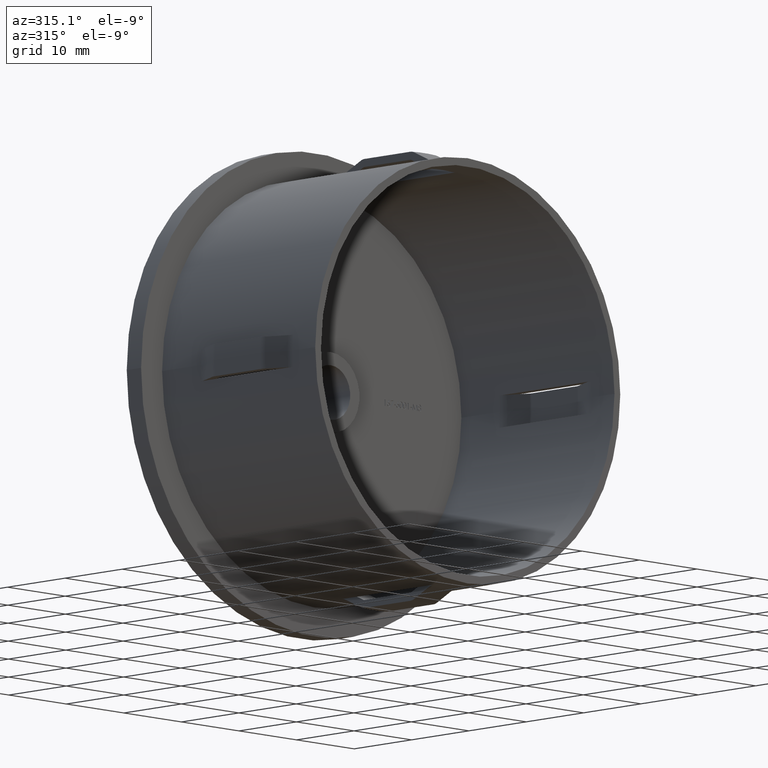
[diagram: clean part render]
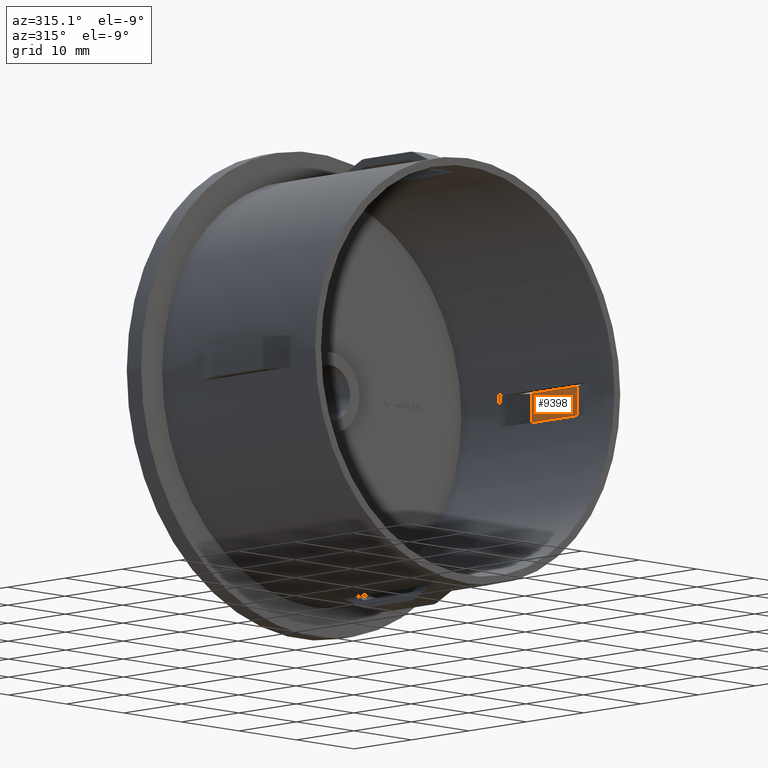
[diagram: same view with one face highlighted and labeled with its STEP entity id]
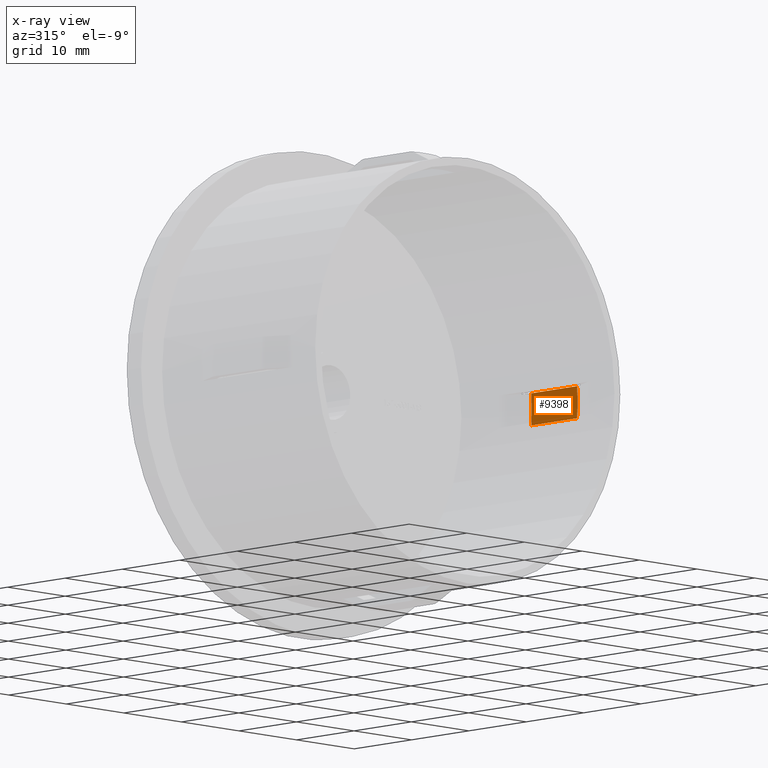
[diagram: x-ray of the same camera — body ghosted, the highlighted face saturated]
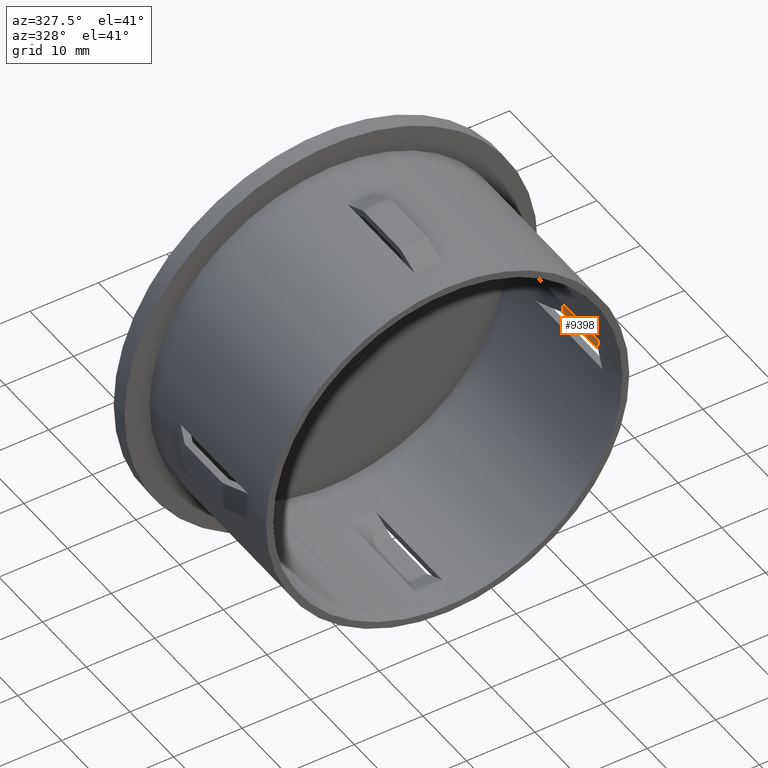
[diagram: same view with one face highlighted and labeled with its STEP entity id]
A machine part, auxiliary view. The second image highlights one B-rep face of the part: STEP entity #9398.
The next image is the same camera in x-ray: the body ghosted, the highlighted face saturated — about 0% of this face is hidden behind the body in this view.
A second angle (auxiliary view) of the same face is appended — the face is thin or edge-on in the first view.
In plain terms, the highlighted cylindrical surface (partial cylindrical patch) has radius 27.05 mm, axis along (-0, 1, -0).
Its self-contained STEP definition (entity closure, byte-faithful):
#309 = VERTEX_POINT ( 'NONE', #16264 ) ;
#1251 = VERTEX_POINT ( 'NONE', #3482 ) ;
#1332 = CIRCLE ( 'NONE', #14272, 27.05000000000000800 ) ;
#2228 = ORIENTED_EDGE ( 'NONE', *, *, #15185, .F. ) ;
#2448 = CARTESIAN_POINT ( 'NONE',  ( 1.494069094959771300E-015, 15.99999999999999600, 0.0000000000000000000 ) ) ;
#3482 = CARTESIAN_POINT ( 'NONE',  ( 26.97596152132488000, 7.999999999999992900, -2.000000000000000000 ) ) ;
#3612 = EDGE_CURVE ( 'NONE', #309, #16398, #5821, .T. ) ;
#3725 = LINE ( 'NONE', #5181, #16401 ) ;
#4189 = EDGE_CURVE ( 'NONE', #9384, #309, #16155, .T. ) ;
#4518 = CARTESIAN_POINT ( 'NONE',  ( 26.97596152132488000, 7.999999999999992900, 2.000000000000000000 ) ) ;
#5181 = CARTESIAN_POINT ( 'NONE',  ( 26.97596152132487600, 29.20000000000000300, -2.000000000000000000 ) ) ;
#5821 = CIRCLE ( 'NONE', #10619, 27.05000000000000100 ) ;
#6107 = ORIENTED_EDGE ( 'NONE', *, *, #3612, .T. ) ;
#6479 = DIRECTION ( 'NONE',  ( -1.224646799147353200E-016, 1.000000000000000000, -0.0000000000000000000 ) ) ;
#7179 = FACE_OUTER_BOUND ( 'NONE', #16176, .T. ) ;
#7673 = DIRECTION ( 'NONE',  ( -1.224646799147353200E-016, 1.000000000000000000, -0.0000000000000000000 ) ) ;
#8085 = DIRECTION ( 'NONE',  ( -1.224646799147353200E-016, 1.000000000000000000, -0.0000000000000000000 ) ) ;
#8474 = DIRECTION ( 'NONE',  ( -1.000000000000000000, -1.282605157838674100E-016, 0.0000000000000000000 ) ) ;
#8569 = CARTESIAN_POINT ( 'NONE',  ( 2.473786534277654000E-015, 7.999999999999992900, 0.0000000000000000000 ) ) ;
#9384 = VERTEX_POINT ( 'NONE', #4518 ) ;
#9398 = ADVANCED_FACE ( 'NONE', ( #7179 ), #10152, .F. ) ;
#10152 = CYLINDRICAL_SURFACE ( 'NONE', #12330, 27.05000000000000400 ) ;
#10197 = ORIENTED_EDGE ( 'NONE', *, *, #4189, .T. ) ;
#10619 = AXIS2_PLACEMENT_3D ( 'NONE', #2448, #7673, #12664 ) ;
#11905 = DIRECTION ( 'NONE',  ( -1.000000000000000000, -1.282605157838674100E-016, 0.0000000000000000000 ) ) ;
#12330 = AXIS2_PLACEMENT_3D ( 'NONE', #14487, #8085, #11905 ) ;
#12664 = DIRECTION ( 'NONE',  ( -1.000000000000000000, -1.282605157838674300E-016, 0.0000000000000000000 ) ) ;
#12994 = CARTESIAN_POINT ( 'NONE',  ( 26.97596152132487600, 16.00000000000000000, -2.000000000000000000 ) ) ;
#13022 = ORIENTED_EDGE ( 'NONE', *, *, #14357, .F. ) ;
#13134 = CARTESIAN_POINT ( 'NONE',  ( 26.97596152132487600, 29.20000000000000300, 2.000000000000000000 ) ) ;
#13410 = VECTOR ( 'NONE', #15673, 1000.000000000000000 ) ;
#13632 = DIRECTION ( 'NONE',  ( -1.224646799147353200E-016, 1.000000000000000000, -0.0000000000000000000 ) ) ;
#14272 = AXIS2_PLACEMENT_3D ( 'NONE', #8569, #13632, #8474 ) ;
#14357 = EDGE_CURVE ( 'NONE', #9384, #1251, #1332, .T. ) ;
#14487 = CARTESIAN_POINT ( 'NONE',  ( -1.224646799147354400E-016, 29.19999999999999900, 0.0000000000000000000 ) ) ;
#15185 = EDGE_CURVE ( 'NONE', #1251, #16398, #3725, .T. ) ;
#15673 = DIRECTION ( 'NONE',  ( -1.224646799147353200E-016, 1.000000000000000000, -0.0000000000000000000 ) ) ;
#16155 = LINE ( 'NONE', #13134, #13410 ) ;
#16176 = EDGE_LOOP ( 'NONE', ( #13022, #10197, #6107, #2228 ) ) ;
#16264 = CARTESIAN_POINT ( 'NONE',  ( 26.97596152132487600, 16.00000000000000000, 2.000000000000000000 ) ) ;
#16398 = VERTEX_POINT ( 'NONE', #12994 ) ;
#16401 = VECTOR ( 'NONE', #6479, 1000.000000000000000 ) ;